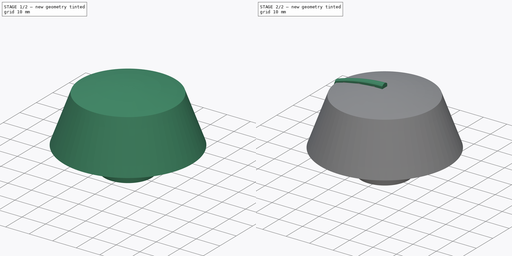
[diagram: build sequence overview — one tinted view per stage of 2, left to right]
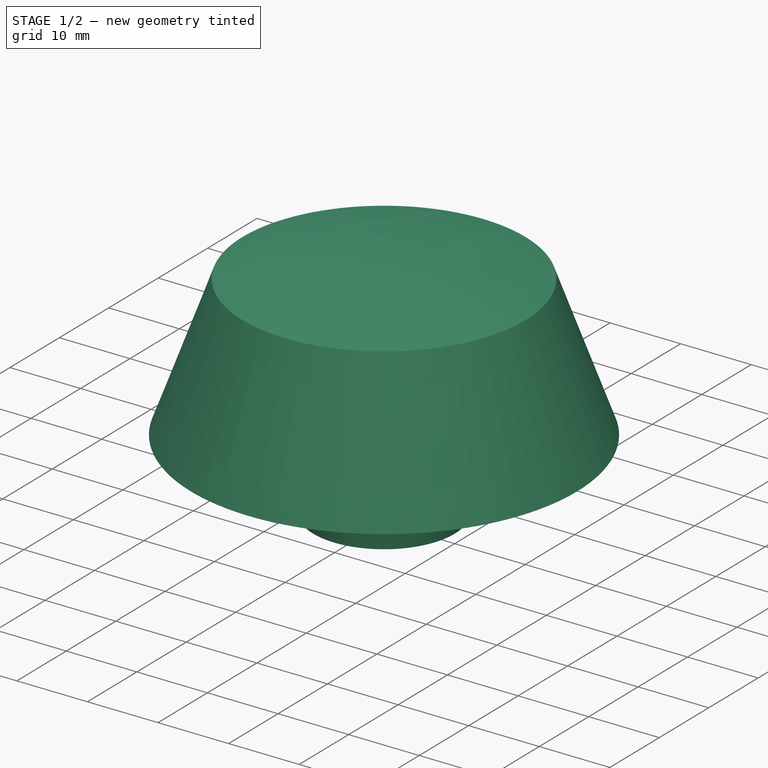
[diagram: stage 1 of 2 — iso view after this stage's code; geometry added in this stage tinted green]
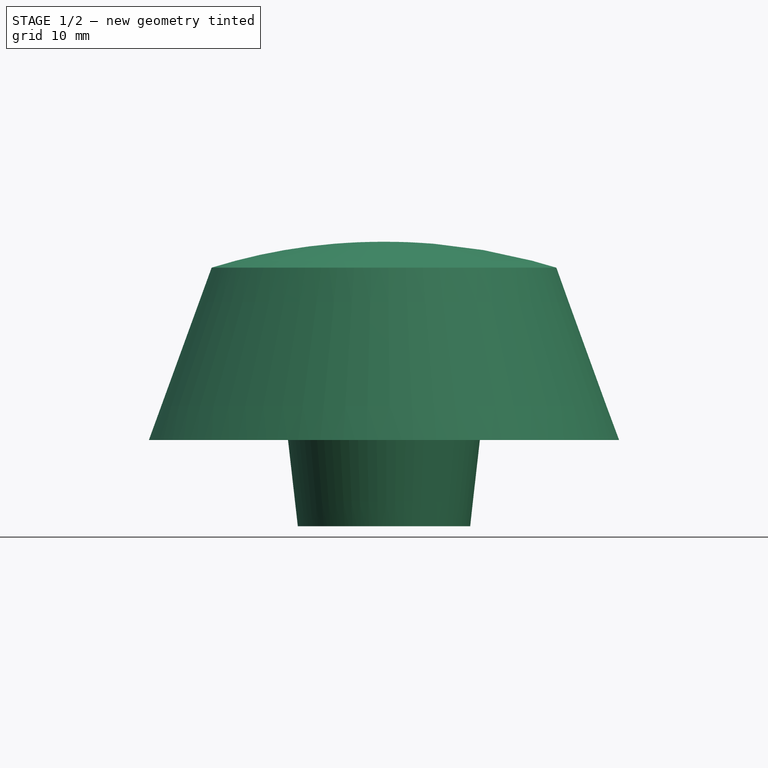
[diagram: stage 1 of 2 — front view after this stage's code; geometry added in this stage tinted green]
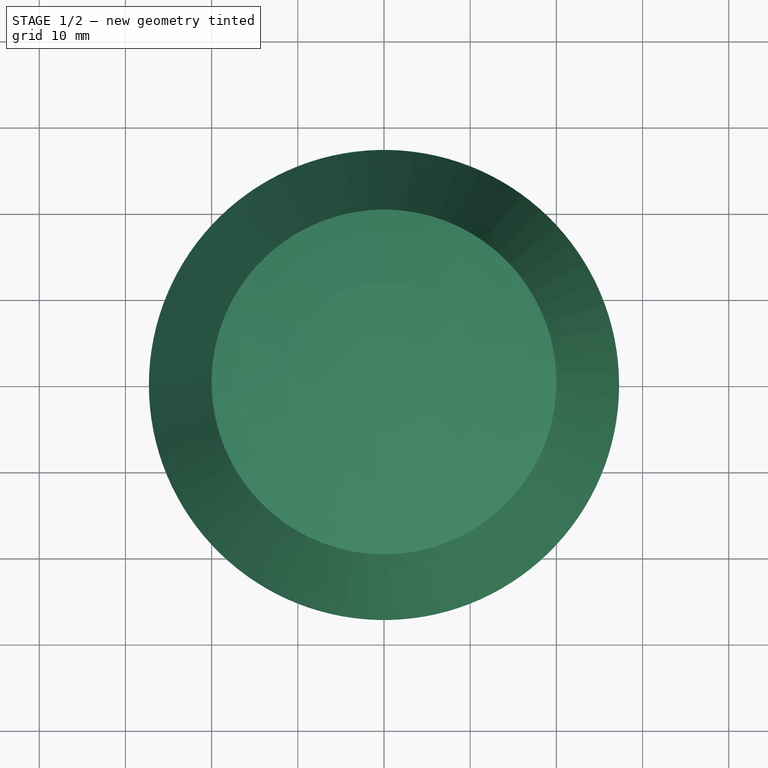
[diagram: stage 1 of 2 — top view after this stage's code; geometry added in this stage tinted green]
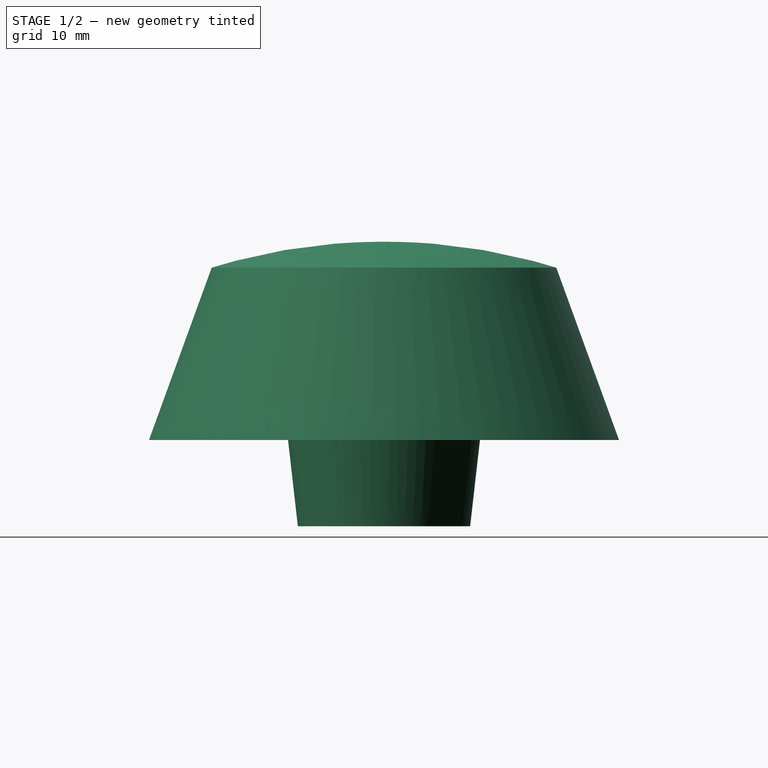
[diagram: stage 1 of 2 — right view after this stage's code; geometry added in this stage tinted green]
FCSTD DOCUMENT  (FreeCAD 0.20R29410 (Git))
Label: MangoJelly_Solutions_Tutorial_Ep7
License: All rights reserved
LicenseURL: http://en.wikipedia.org/wiki/All_rights_reserved
objects: Sketcher::SketchObject×3, PartDesign::Revolution×1, PartDesign::AdditivePipe×1, PartDesign::Body×1
note: 8 computed .brp shape members not serialized (recipe doc carries the construction recipe); baked Part::Feature solids carry a one-line shape summary decoded from their .brp

FEATURE [Sketcher::SketchObject] Sketch
  FullyConstrained = true
  MapMode = 5
  Placement = pos=(0,0,0) rot=(1,0,0;1.5708rad)
  Support = -> [XZ_Plane]
  sketch-geometry (10):
    g0: LineSegment StartX=0 StartY=12 StartZ=0 EndX=-8.89e-14 EndY=33 EndZ=0
    g1: LineSegment StartX=-20 StartY=30 StartZ=0 EndX=-27.2794 EndY=10 EndZ=0
    g2: LineSegment StartX=-27.2794 StartY=10 StartZ=0 EndX=-21.2794 EndY=10 EndZ=0
    g3: LineSegment StartX=-21.2794 StartY=10 StartZ=0 EndX=-15.4559 EndY=26 EndZ=0
    g4: LineSegment StartX=-15.4559 StartY=26 StartZ=0 EndX=-12.9559 EndY=26 EndZ=0
    g5: LineSegment StartX=-12.9559 StartY=26 StartZ=0 EndX=-10 EndY=0 EndZ=0
    g6: LineSegment StartX=-10 StartY=0 StartZ=0 EndX=-3.5 EndY=0 EndZ=0
    g7: LineSegment StartX=-3.5 StartY=0 StartZ=0 EndX=-3.5 EndY=12 EndZ=0
    g8: LineSegment StartX=-3.5 StartY=12 StartZ=0 EndX=0 EndY=12 EndZ=0
    g9: ArcOfCircle CenterX=-0.32512 CenterY=-32.9992 CenterZ=0 NormalX=0 NormalY=0 NormalZ=1 AngleXU=0 Radius=66 StartAngle=1.56587 EndAngle=1.8735
  constraints (31):
    c: Coincident(g1,g2)
    c: Horizontal(g2)
    c: Coincident(g2,g3)
    c: Coincident(g3,g4)
    c: Horizontal(g4)
    c: Coincident(g4,g5)
    c: PointOnObject(g5,g-1)
    c: Coincident(g5,g6)
    c: Horizontal(g6)
    c: Coincident(g6,g7)
    c: Vertical(g7)
    c: Coincident(g7,g8)
    c: Horizontal(g8)
    c: Coincident(g0,g8)
    c: PointOnObject(g0,g-2)
    c: PointOnObject(g0,g-2)
    c: DistanceY(g3,g1) = 4
    c: DistanceX(g2,g2) = 6
    c: DistanceX(g8,g8) = 3.5
    c: DistanceY(g6,g0) = 33
    c: DistanceY(g6,g7) = 12
    c: DistanceY(g2,g1) = 20
    c: Angle(g-1,g1) = 1.22173
    c: Angle(g-1,g3) = 1.22173
    c: DistanceX(g1,g0) = 20
    c: DistanceX(g3,g4) = 2.5
    c: DistanceX(g5,g6) = 6.5
    c: Coincident(g9,g1)
    c: Coincident(g9,g0)
    c: DistanceY(g-1,g1) = 30
    c: Radius(g9) = 66
FEATURE [PartDesign::Revolution] Revolution
  Angle = 360
  Axis = (0,2e-16,1)
  Base = (0,0,0)
  Placement = pos=(0,0,0) rot=(1,0,0;1.5708rad)
  Profile = -> Sketch
  ReferenceAxis = -> Sketch [V_Axis]
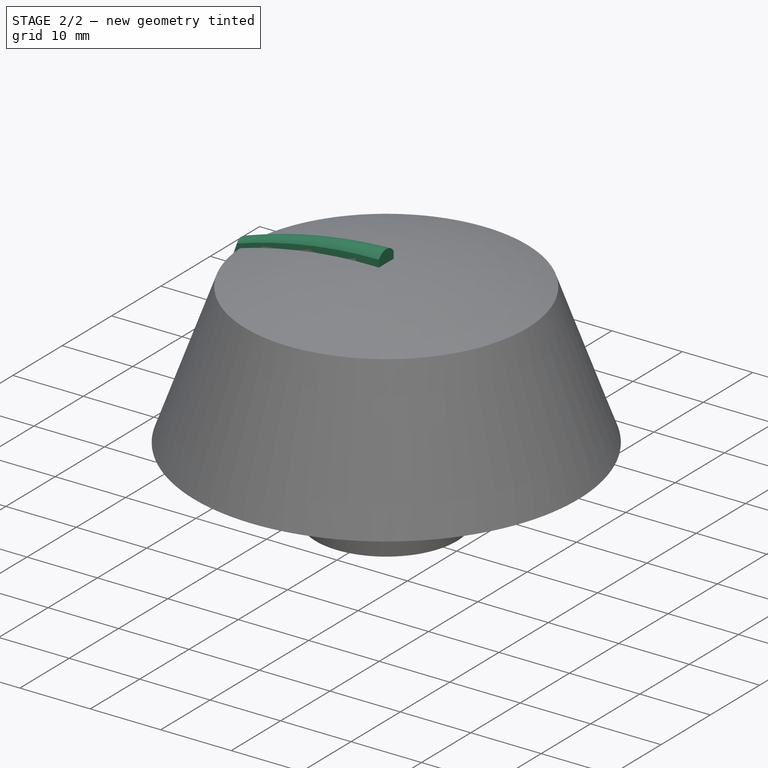
[diagram: stage 2 of 2 — iso view after this stage's code; geometry added in this stage tinted green]
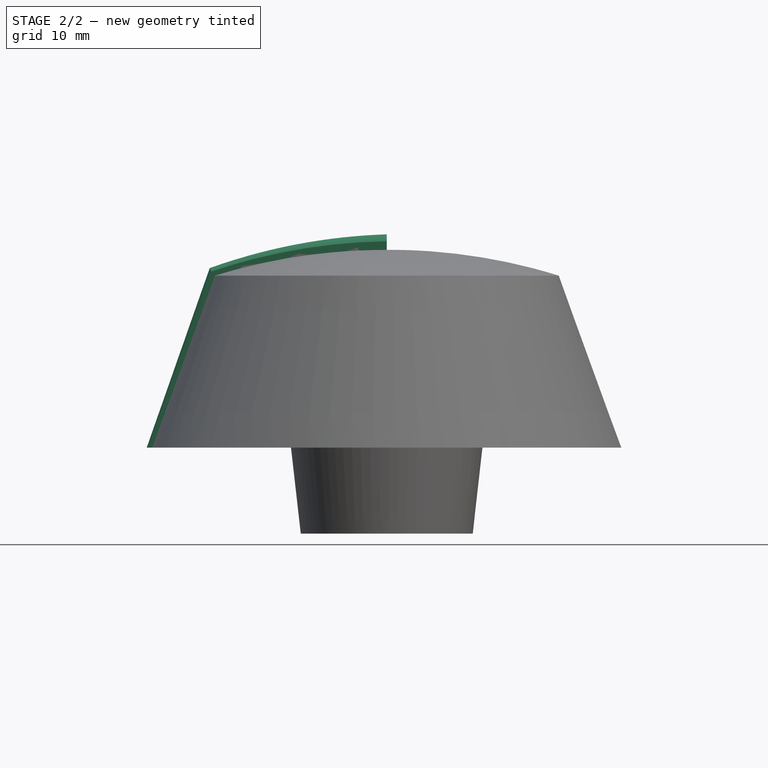
[diagram: stage 2 of 2 — front view after this stage's code; geometry added in this stage tinted green]
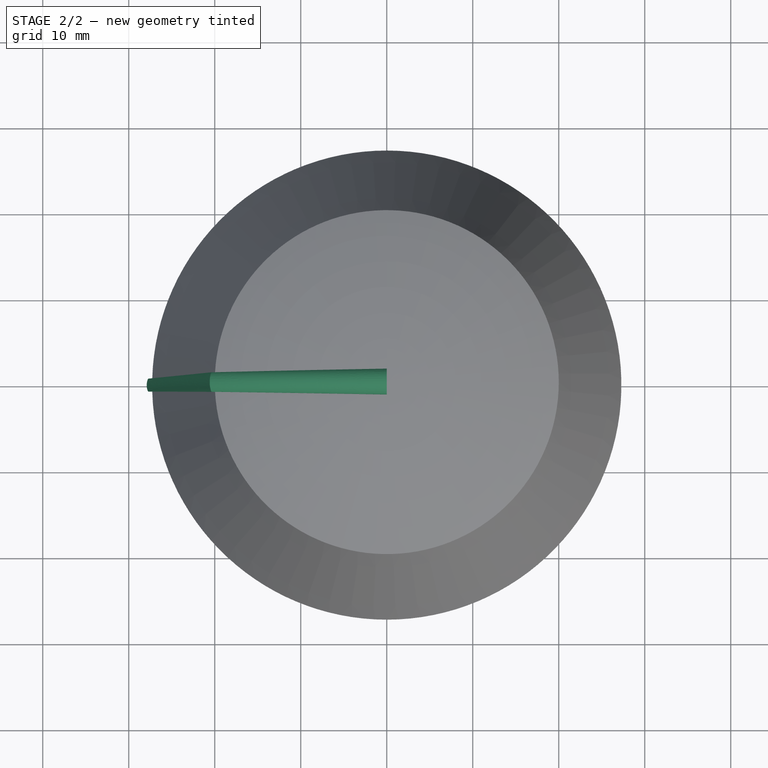
[diagram: stage 2 of 2 — top view after this stage's code; geometry added in this stage tinted green]
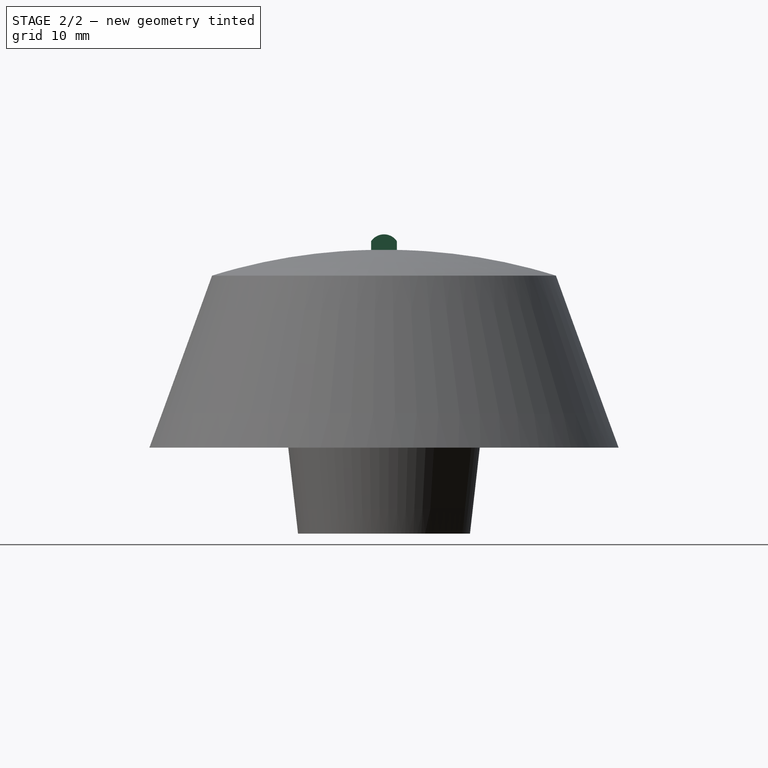
[diagram: stage 2 of 2 — right view after this stage's code; geometry added in this stage tinted green]
FEATURE [Sketcher::SketchObject] Sketch001
  ExternalGeometry = -> [Revolution]
  FullyConstrained = true
  MapMode = 5
  Placement = pos=(0,0,0) rot=(0.57735,0.57735,0.57735;2.0944rad)
  Support = -> [YZ_Plane]
  sketch-geometry (4):
    g0: LineSegment StartX=-1.5 StartY=30.995 StartZ=0 EndX=1.5 EndY=30.995 EndZ=0
    g1: LineSegment StartX=-1.5 StartY=30.995 StartZ=0 EndX=-1.5 EndY=33.995 EndZ=0
    g2: LineSegment StartX=1.5 StartY=30.995 StartZ=0 EndX=1.5 EndY=33.995 EndZ=0
    g3: ArcOfCircle CenterX=-1.3e-15 CenterY=33 CenterZ=0 NormalX=0 NormalY=0 NormalZ=1 AngleXU=0 Radius=1.8 StartAngle=0.585686 EndAngle=2.55591
  constraints (11):
    c: Coincident(g1,g0)
    c: Vertical(g1)
    c: Coincident(g2,g0)
    c: Coincident(g3,g1)
    c: Coincident(g3,g2)
    c: Symmetric(g1,g2,g-2)
    c: Symmetric(g0,g0,g-2)
    c: DistanceX(g0,g0) = 3
    c: DistanceY(g0,g2) = 3
    c: Radius(g3) = 1.8
    c: Coincident(g3,g-3)
FEATURE [Sketcher::SketchObject] Sketch002
  FullyConstrained = false
  MapMode = 5
  Placement = pos=(0,2.2e-15,10) rot=(1,0,0;3.14159rad)
  Support = -> [Revolution]
  sketch-geometry (4):
    g0: LineSegment StartX=-27.75 StartY=-0.75 StartZ=0 EndX=-25.6771 EndY=-0.75 EndZ=0
    g1: LineSegment StartX=-25.6771 StartY=-0.75 StartZ=0 EndX=-25.6771 EndY=0.75 EndZ=0
    g2: LineSegment StartX=-25.6771 StartY=0.75 StartZ=0 EndX=-27.75 EndY=0.75 EndZ=0
    g3: ArcOfCircle CenterX=-26.1137 CenterY=0 CenterZ=0 NormalX=0 NormalY=0 NormalZ=1 AngleXU=0 Radius=1.8 StartAngle=2.71182 EndAngle=3.57137
  constraints (10):
    c: Coincident(g0,g1)
    c: Coincident(g1,g2)
    c: Coincident(g3,g0)
    c: Coincident(g3,g2)
    c: PointOnObject(g3,g-1)
    c: Symmetric(g1,g0,g-1)
    c: DistanceY(g0,g1) = 1.5
    c: DistanceY(g0,g2) = 1.5
    c: Radius(g3) = 1.8
    c: DistanceX(g0,g-1) = 27.75
FEATURE [PartDesign::AdditivePipe] AdditivePipe
  AuxilleryCurvelinear = true
  AuxillerySpineTangent = false
  BaseFeature = -> Revolution
  Binormal = (0,0,0)
  Mode = 0
  Placement = pos=(0,0,0) rot=(1,0,0;1.5708rad)
  Profile = -> Sketch001
  Sections = -> [Sketch002]
  Spine = -> Revolution [Edge3,Edge5]
  SpineTangent = false
  Transformation = 1
  Transition = 0
FEATURE [PartDesign::Body] Body
  Group = -> [Sketch,Revolution,Sketch001,Sketch002,AdditivePipe]
  Origin = -> Origin
  Tip = -> AdditivePipe
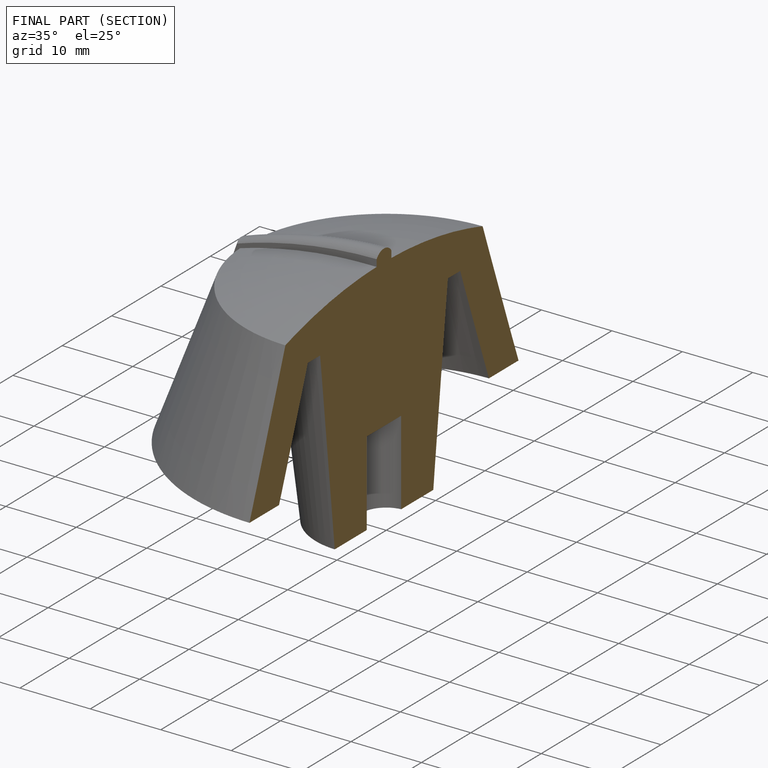
[diagram: finished part — half-section view (interior)]
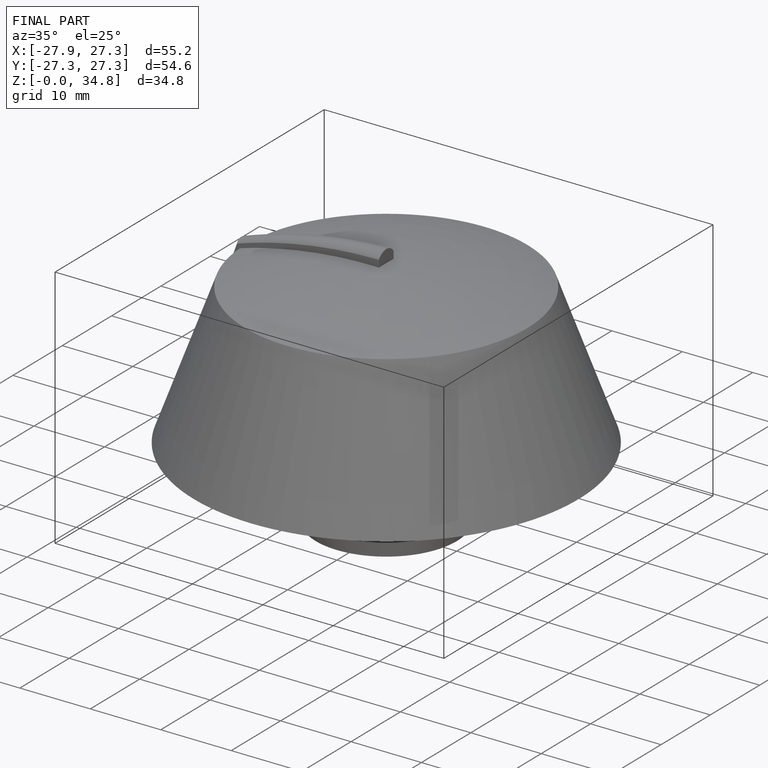
[diagram: finished part — iso view with bounding-box wireframe]
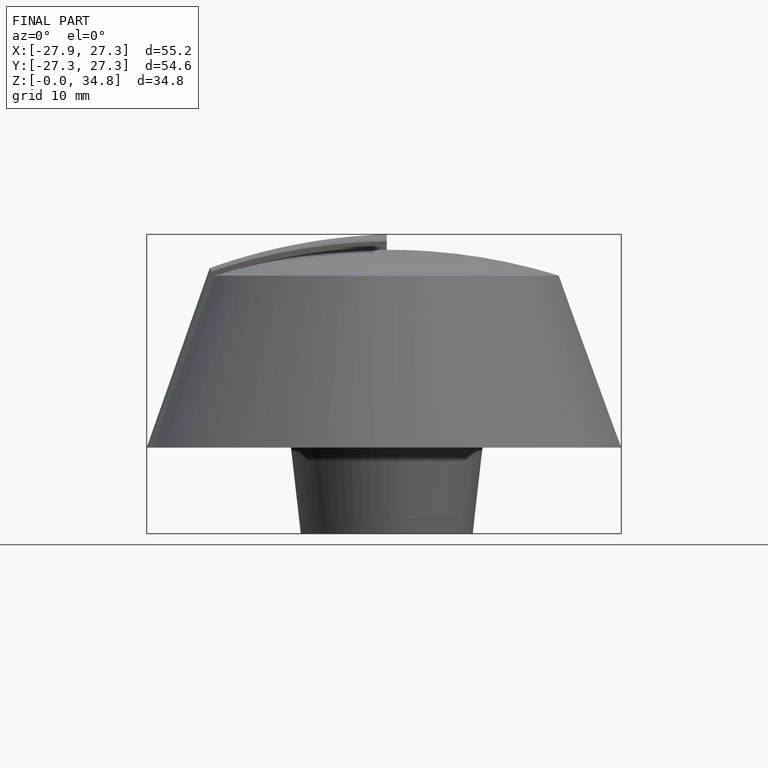
[diagram: finished part — front view with bounding-box wireframe]
